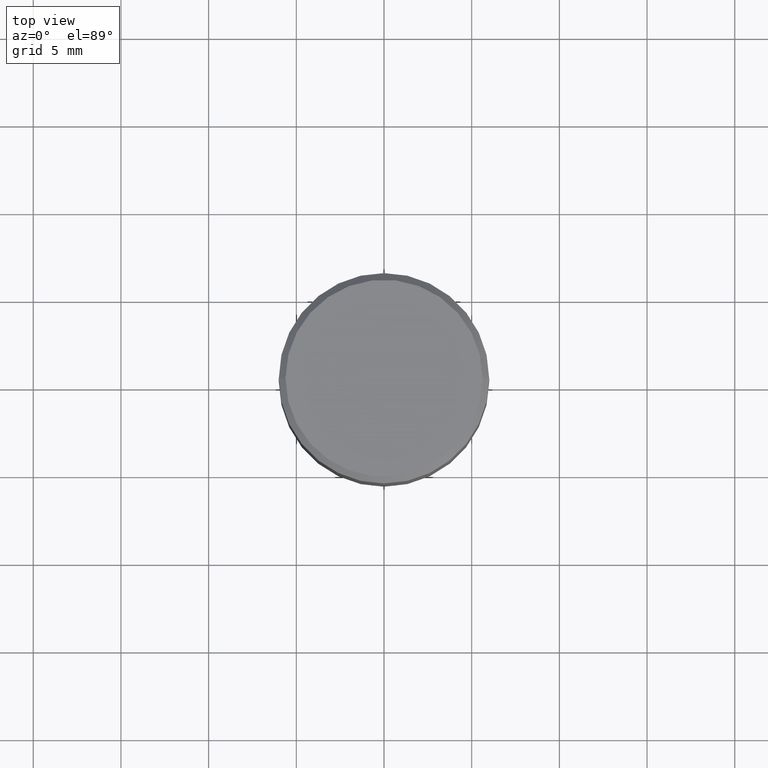
[diagram: clean part render]
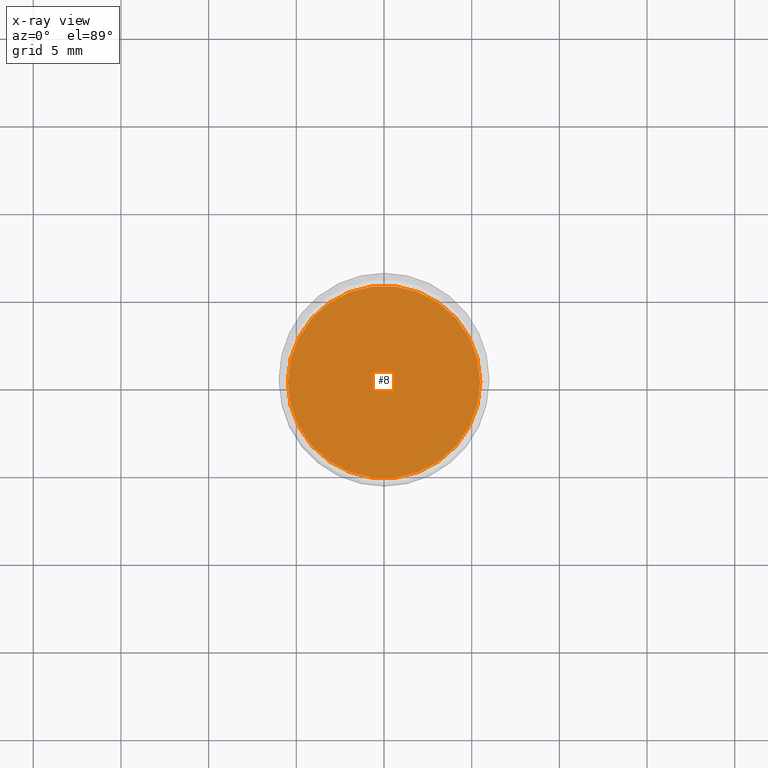
[diagram: x-ray — body ghosted, one internal face saturated and labeled with its STEP entity id]
A machine part, top view, then the same camera in x-ray: the body is ghosted and one INTERNAL B-rep face — a face not visible from any outside direction — is saturated and labeled: STEP entity #8.
In plain terms, the highlighted planar face has unit normal (-0, 0, 1).
Its self-contained STEP definition (entity closure, byte-faithful):
#4 = DIRECTION ( 'NONE',  ( 1.000000000000000000, -6.982962677686267499E-15, 0.000000000000000000 ) ) ;
#8 = ADVANCED_FACE ( 'NONE', ( #336 ), #456, .F. ) ;
#30 = DIRECTION ( 'NONE',  ( -2.438088387897960049E-29, 3.491481338843145188E-15, 1.000000000000000000 ) ) ;
#36 = CARTESIAN_POINT ( 'NONE',  ( 0.2160500000000000198, -3.309226012955529172E-15, -0.5157000000000001583 ) ) ;
#65 = AXIS2_PLACEMENT_3D ( 'NONE', #359, #330, #4 ) ;
#67 = VERTEX_POINT ( 'NONE', #70 ) ;
#70 = CARTESIAN_POINT ( 'NONE',  ( -0.2160500000000000198, -2.627801186576033655E-16, -0.5157000000000001583 ) ) ;
#91 = ORIENTED_EDGE ( 'NONE', *, *, #160, .F. ) ;
#95 = ORIENTED_EDGE ( 'NONE', *, *, #289, .F. ) ;
#101 = CIRCLE ( 'NONE', #65, 0.2160500000000000198 ) ;
#106 = CARTESIAN_POINT ( 'NONE',  ( 1.261128263349675426E-29, -1.800556926441410962E-15, -0.5157000000000001583 ) ) ;
#131 = EDGE_LOOP ( 'NONE', ( #91, #95 ) ) ;
#160 = EDGE_CURVE ( 'NONE', #222, #67, #101, .T. ) ;
#222 = VERTEX_POINT ( 'NONE', #36 ) ;
#239 = DIRECTION ( 'NONE',  ( -2.445468806185136597E-29, 3.491481338843145583E-15, 1.000000000000000000 ) ) ;
#279 = AXIS2_PLACEMENT_3D ( 'NONE', #463, #30, #433 ) ;
#288 = CIRCLE ( 'NONE', #445, 0.2160500000000000198 ) ;
#289 = EDGE_CURVE ( 'NONE', #67, #222, #288, .T. ) ;
#330 = DIRECTION ( 'NONE',  ( -2.445468806185136597E-29, 3.491481338843145583E-15, 1.000000000000000000 ) ) ;
#336 = FACE_OUTER_BOUND ( 'NONE', #131, .T. ) ;
#359 = CARTESIAN_POINT ( 'NONE',  ( 1.261128263349675426E-29, -1.800556926441410962E-15, -0.5157000000000001583 ) ) ;
#397 = DIRECTION ( 'NONE',  ( 1.000000000000000000, -6.982962677686267499E-15, 0.000000000000000000 ) ) ;
#433 = DIRECTION ( 'NONE',  ( 1.000000000000000000, -6.982962677686265922E-15, 4.876176775795935793E-29 ) ) ;
#445 = AXIS2_PLACEMENT_3D ( 'NONE', #106, #239, #397 ) ;
#456 = PLANE ( 'NONE',  #279 ) ;
#463 = CARTESIAN_POINT ( 'NONE',  ( 1.261128263349675426E-29, -1.800556926441410962E-15, -0.5157000000000001583 ) ) ;